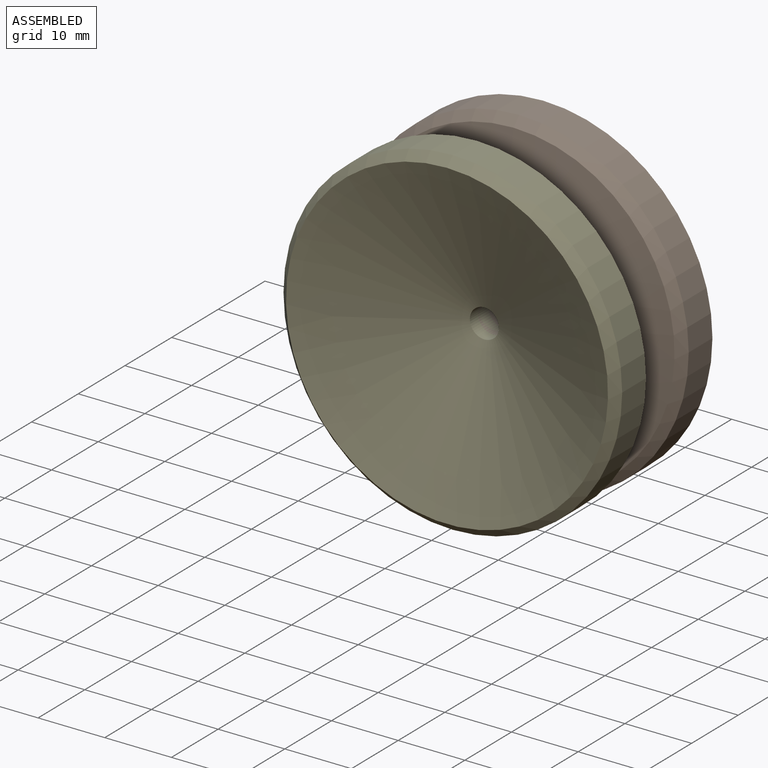
[diagram: assembled view]
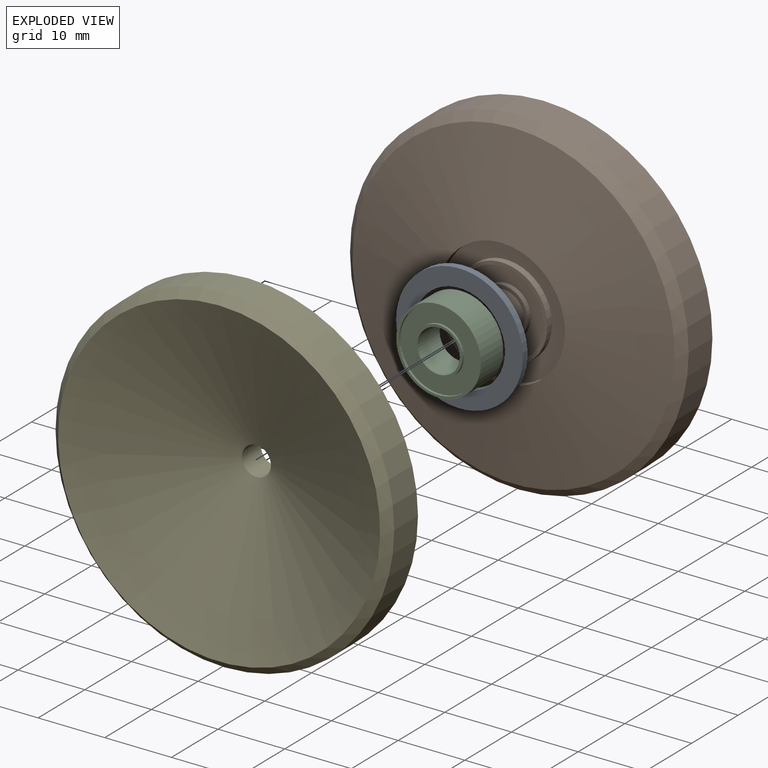
[diagram: exploded view]
GUIDED TOUR — MATED ASSEMBLY (Onshape document 0cececd1d581c5ba47dd9a4f, AutoMate assembly 0cececd1d581c5ba47dd9a4f_2307bee26cb785bb0d0b0812_d44ac8d073755cfcf567f2fb_default)

This assembly has 5 components, labeled P0..P4 below (a component is one placed occurrence of a part; the same part can appear more than once), held together by 4 mates. A mate is a constraint between two components; its type names the relative motion it leaves free:
  FASTENED — locks the two components together rigidly (no relative motion).
Axis/direction vectors are unit vectors and 'through' points are millimeter coordinates, both in the assembly's world frame.

MATES
  1. FASTENED "Fastened 2": P3 <-> P4, direction (0.000, -1.000, 0.000) through (-38.23, -20.08, 12.99) mm
  2. FASTENED "Fastened 4": P2 <-> P1, direction (0.000, 1.000, 0.000) through (-38.23, -14.97, 12.99) mm
  3. FASTENED "Fastened 3": P2 <-> P4, direction (0.000, -1.000, 0.000) through (-38.23, -19.34, 12.99) mm
  4. FASTENED "Fastened 1": P0 <-> P1, direction (0.000, 1.000, 0.000) through (-38.23, -16.53, 12.99) mm

ASSEMBLY ORDER
  1. P1 — the base component [order heuristic]
  2. P0 [order heuristic]
  3. P2 [order heuristic]
  4. P4 [order heuristic]
  5. P3 [order heuristic]
Order-tag legend:
  [order heuristic] — this assembly is geometrically interlocked (no collision-free removal order exists), so components are listed in mate-graph order; insertion feasibility is not verified.

Of the 5 components, 3 carry the full construction recipe — the FeatureScript program that regenerates the part's solid from scratch; the rest are supplied as boundary geometry only.
Each toured component is shown spotlighted twice — in the assembled view, then in the exploded view, where a leader line traces a displaced component back to its assembled socket (saturated green if recipe-attached, orange if geometry-only; every other component desaturated gray) — followed by its recipe or geometry summary and the mates that hold it.
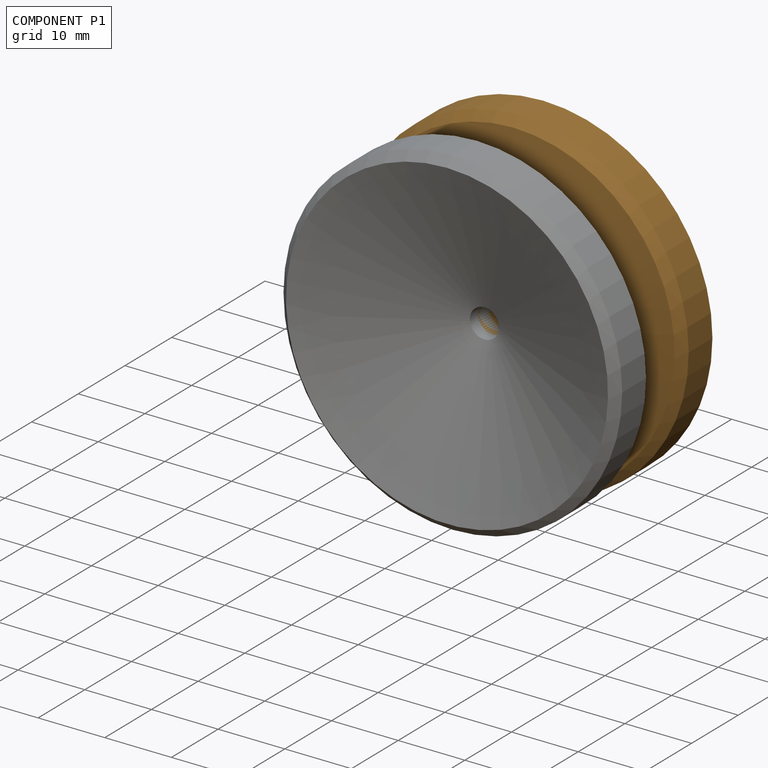
[diagram: component P1 — assembled]
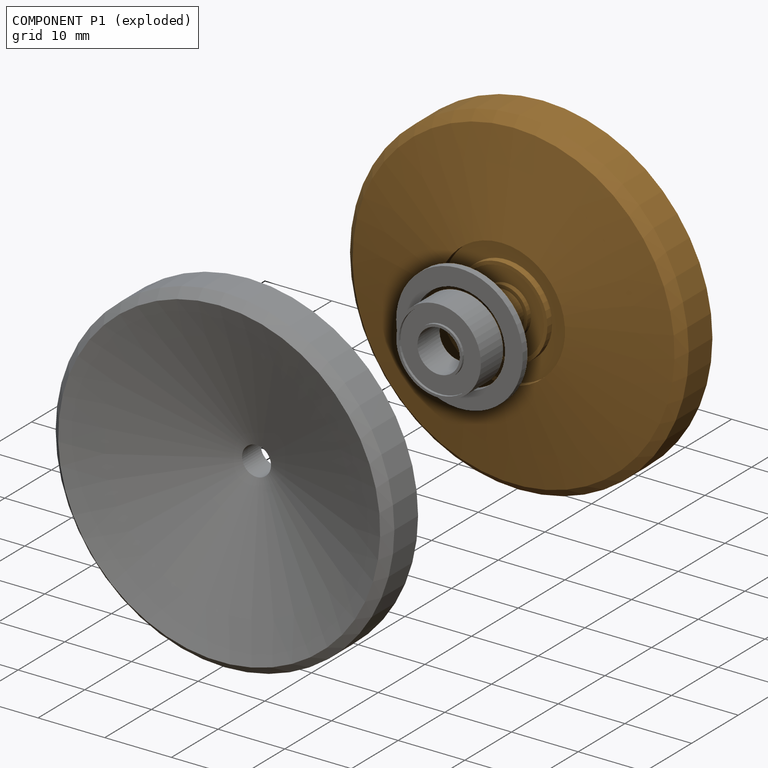
[diagram: component P1 — exploded]
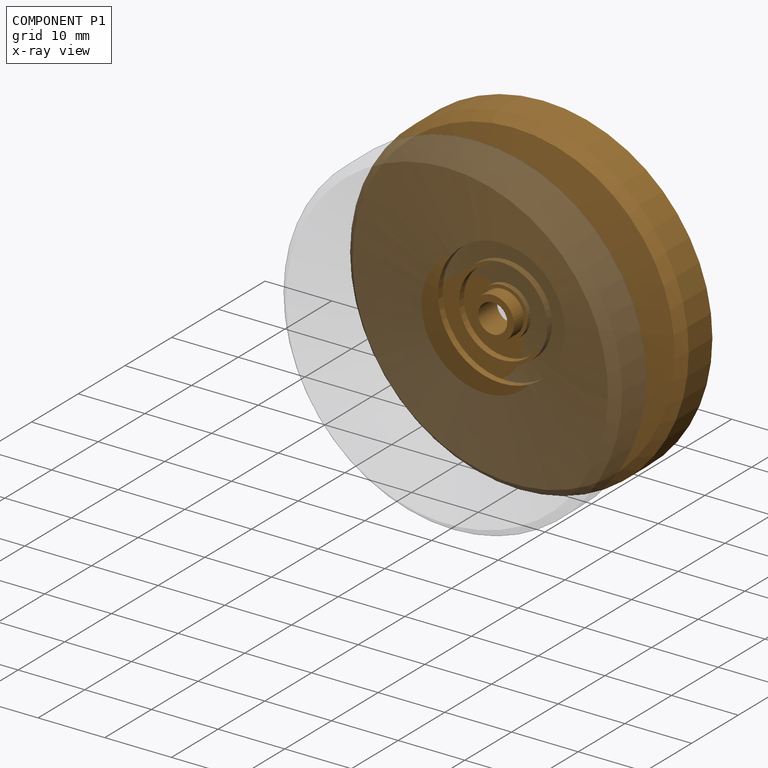
[diagram: component P1 — x-ray view]
COMPONENT P1 — geometry summary (no construction recipe available for this part):
  bounding box: 50.8 x 50.8 x 12.0 mm
  B-rep topology: 1 solid, 16 faces, 56 edges
  volume: 11971 mm^3 (39% of its bounding box)
  symmetry: revolution-symmetric about the y axis through its bounding-box center; mirror-symmetric across its x mid-plane, z mid-plane
Held by: FASTENED mate "Fastened 4" to P2; FASTENED mate "Fastened 1" to P0.
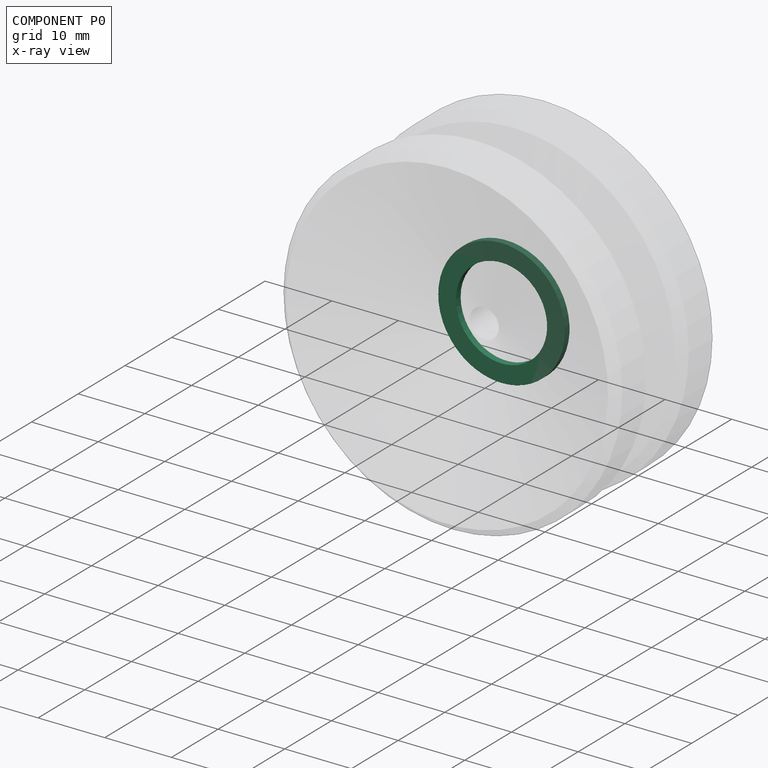
[diagram: component P0 — x-ray view]
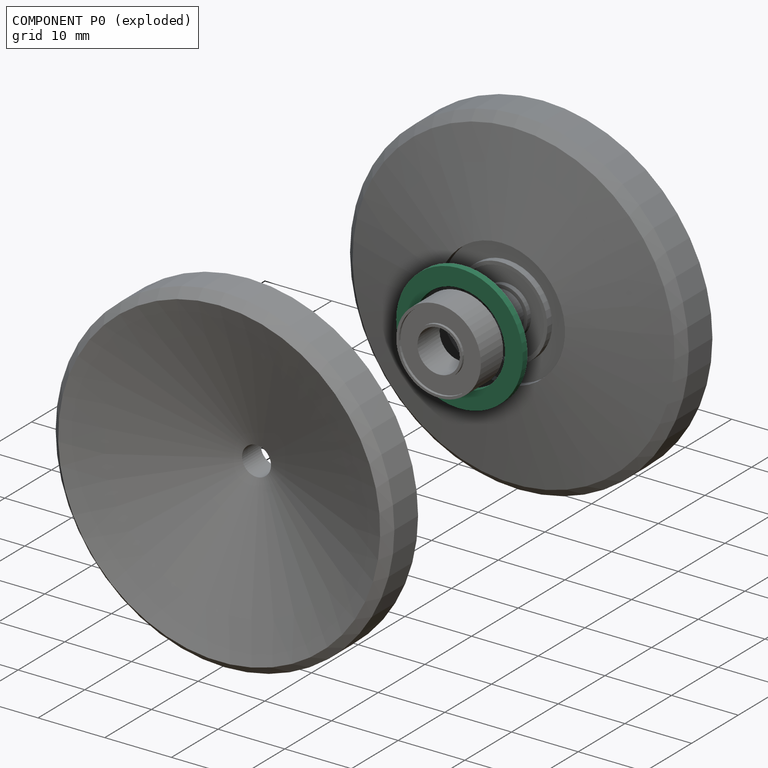
[diagram: component P0 — exploded]
COMPONENT P0 — recipe-attached (CADFS 00798562, mesh-verified: the recipe's output STEP matches this component's geometry to below the mesh-comparison resolution (tessellation chordal tolerance ~0.0403 mm)).
Held by: FASTENED mate "Fastened 1" to P1.
Construction recipe (FeatureScript — the CAD program that rebuilds this solid; sketch coordinates are in the units given by the * unit suffixes, e.g. mm):

FeatureScript 1511;
import(path : "onshape/std/geometry.fs", version : "1511.0");
import(path : "onshape/std/common.fs", version : "1511.0");
const mm = millimeter;
const VERTEX = EntityType.VERTEX;
const EDGE = EntityType.EDGE;
const FACE = EntityType.FACE;
const BODY = EntityType.BODY;
function v(x, y){return vector(x, y);}
function OD(order){return orderDisambiguation(order);}
function OSD(set){return originalSetDisambiguation(set);}
function TD(topology){return topologyDisambiguation(topology);}
function TDD(query){return trueDependencyDisambiguation(query);}
function sQuery(a, b, c) {return sketchEntityQuery(a, b, c);}

annotation { "Feature Type Name" : "Feature", "Feature Type Description" : "" }
export const myFeature = defineFeature(function(context is Context, id is Id, definition is map)
    precondition{}
    {
        {
            var Q0;
            Q0=qCreatedBy(makeId("Right.planeOp"),FACE);
            var sketch = newSketch(context, id + "F0", { "sketchPlane" : qUnion([Q0])});
            skCircle(sketch, "E0", {"center": v(0, 0) * mm, "radius": 9.5 * mm});
            skLineSegment(sketch, "E1", {"start": v(0, 9.5) * mm, "end": v(0, 6.83) * mm});
            skLineSegment(sketch, "E2", {"start": v(0, -9.5) * mm, "end": v(0, -6.83) * mm});
            skLineSegment(sketch, "E3", {"start": v(-9.5, 0) * mm, "end": v(-6.83, 0) * mm});
            skLineSegment(sketch, "E4", {"start": v(9.5, 0) * mm, "end": v(6.83, 0) * mm});
            skCircle(sketch, "E5", {"center": v(0, 0) * mm, "radius": 6.83 * mm});
            skSolve(sketch);
        }
        {
            var Q0;
            {var subQ0=sQuery(id+"F0.wireOp",EDGE,"E1");Q0=makeQuery(id+"F0.imprint","IMPRINT",FACE,{"disambiguationData":[TD([[makeQuery(id+"F0.imprint","IMPRINT",EDGE,{"derivedFrom":subQ0}),-1.0]])]});}
            var Q1;
            {var subQ0=sQuery(id+"F0.wireOp",EDGE,"E1");Q1=makeQuery(id+"F0.imprint","IMPRINT",FACE,{"disambiguationData":[TD([[makeQuery(id+"F0.imprint","IMPRINT",EDGE,{"derivedFrom":subQ0}),1.0]])]});}
            var Q2;
            {var subQ0=sQuery(id+"F0.wireOp",EDGE,"E2");Q2=makeQuery(id+"F0.imprint","IMPRINT",FACE,{"disambiguationData":[TD([[makeQuery(id+"F0.imprint","IMPRINT",EDGE,{"derivedFrom":subQ0}),-1.0]])]});}
            var Q3;
            {var subQ0=sQuery(id+"F0.wireOp",EDGE,"E2");Q3=makeQuery(id+"F0.imprint","IMPRINT",FACE,{"disambiguationData":[TD([[makeQuery(id+"F0.imprint","IMPRINT",EDGE,{"derivedFrom":subQ0}),1.0]])]});}
            extrude(context, id + "F1", {"entities" : qUnion([Q0, Q1, Q2, Q3]), "depth" : 1.02 * mm});
        }
    });
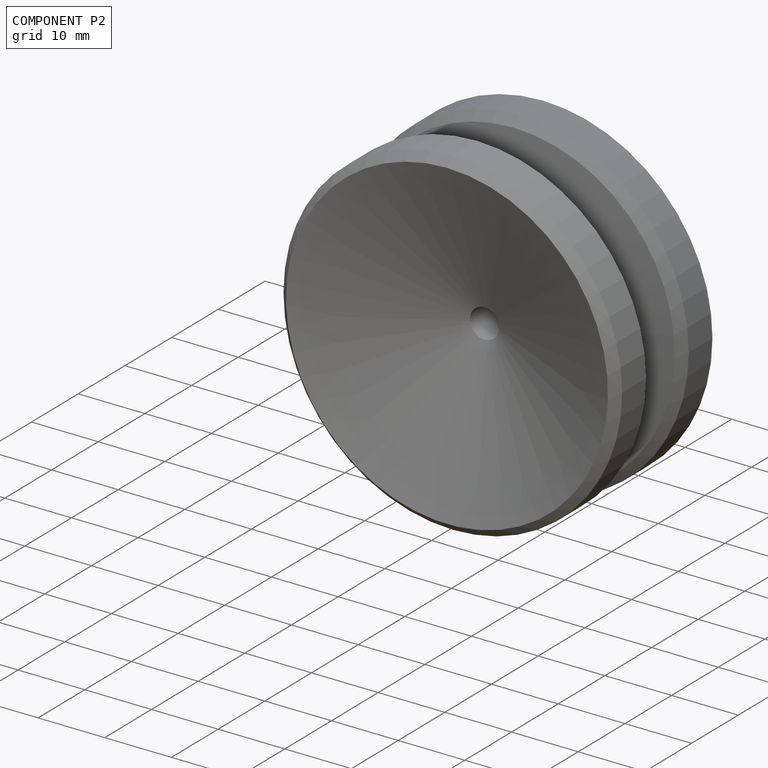
[diagram: component P2 — assembled]
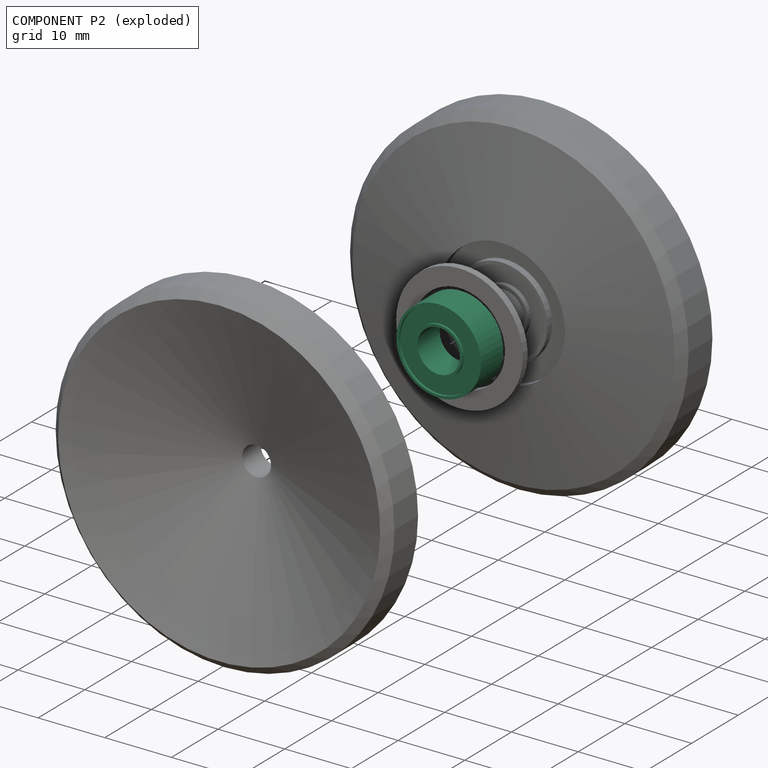
[diagram: component P2 — exploded]
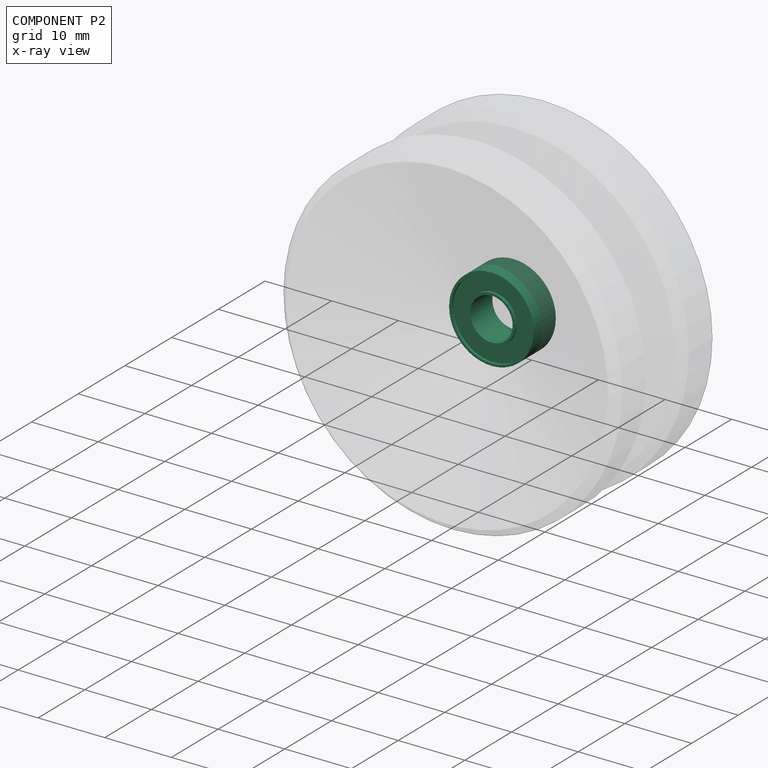
[diagram: component P2 — x-ray view]
COMPONENT P2 — recipe-attached (CADFS 00783110, mesh-verified: the recipe's output STEP matches this component's geometry to below the mesh-comparison resolution (tessellation chordal tolerance ~0.0279 mm)).
Held by: FASTENED mate "Fastened 4" to P1; FASTENED mate "Fastened 3" to P4.
Construction recipe (FeatureScript — the CAD program that rebuilds this solid; sketch coordinates are in the units given by the * unit suffixes, e.g. mm):

FeatureScript 1540;
import(path : "onshape/std/geometry.fs", version : "1540.0");
import(path : "onshape/std/common.fs", version : "1540.0");
const mm = millimeter;
const VERTEX = EntityType.VERTEX;
const EDGE = EntityType.EDGE;
const FACE = EntityType.FACE;
const BODY = EntityType.BODY;
function v(x, y){return vector(x, y);}
function OD(order){return orderDisambiguation(order);}
function OSD(set){return originalSetDisambiguation(set);}
function TD(topology){return topologyDisambiguation(topology);}
function TDD(query){return trueDependencyDisambiguation(query);}
function sQuery(a, b, c) {return sketchEntityQuery(a, b, c);}

annotation { "Feature Type Name" : "Feature", "Feature Type Description" : "" }
export const myFeature = defineFeature(function(context is Context, id is Id, definition is map)
    precondition{}
    {
        {
            var Q0;
            Q0=qCreatedBy(makeId("Right.planeOp"),FACE);
            var sketch = newSketch(context, id + "F0", { "sketchPlane" : qUnion([Q0])});
            skCircle(sketch, "E0", {"center": v(0, 0) * mm, "radius": 6.35 * mm});
            skSolve(sketch);
        }
        {
            var Q0;
            Q0=makeQuery(id+"F0.imprint","IMPRINT",FACE,{"disambiguationData":[TD([[makeQuery(id+"F0.imprint","IMPRINT",EDGE,{"derivedFrom":sQuery(id+"F0.wireOp",EDGE,"E0")}),1.0]])]});
            extrude(context, id + "F1", {"entities" : qUnion([Q0]), "depth" : 4.75 * mm});
        }
        {
            var Q0;
            Q0=makeQuery(id+"F1.opExtrude","CAP_FACE",FACE,{"disambiguationData":[OSD([sQuery(id+"F0.wireOp",EDGE,"E0")])],"isStart":false});
            var sketch = newSketch(context, id + "F2", { "sketchPlane" : qUnion([Q0])});
            skCircle(sketch, "E1", {"center": v(0, 0) * mm, "radius": 3.18 * mm});
            skSolve(sketch);
        }
        {
            var Q0;
            Q0=makeQuery(id+"F2.imprint","IMPRINT",FACE,{"disambiguationData":[TD([[makeQuery(id+"F2.imprint","IMPRINT",EDGE,{"derivedFrom":sQuery(id+"F2.wireOp",EDGE,"E1")}),1.0]])]});
            extrude(context, id + "F3", {"entities" : qUnion([Q0]), "operationType" : NewBodyOperationType.REMOVE, "oppositeDirection" : true, "depth" : 25.4 * mm});
        }
        {
            var Q0;
            Q0=makeQuery(id+"F1.opExtrude","CAP_FACE",FACE,{"disambiguationData":[OSD([sQuery(id+"F0.wireOp",EDGE,"E0")])],"isStart":false});
            var sketch = newSketch(context, id + "F4", { "sketchPlane" : qUnion([Q0])});
            skLineSegment(sketch, "E2", {"start": v(0, 3.18) * mm, "end": v(0, 3.56) * mm});
            skLineSegment(sketch, "E3", {"start": v(0, 6.35) * mm, "end": v(0, 5.97) * mm});
            skLineSegment(sketch, "E4", {"start": v(0, -3.18) * mm, "end": v(0, -3.56) * mm});
            skLineSegment(sketch, "E5", {"start": v(0, -6.35) * mm, "end": v(0, -5.97) * mm});
            skCircle(sketch, "E6", {"center": v(0, 0) * mm, "radius": 3.56 * mm});
            skCircle(sketch, "E7", {"center": v(0, 0) * mm, "radius": 5.97 * mm});
            skSolve(sketch);
        }
        {
            var Q0;
            {var subQ0=sQuery(id+"F4.wireOp",EDGE,"E6");var subQ1=makeQuery(id+"F4.imprint","INTERSECT",VERTEX,{"derivedFrom":[sQuery(id+"F4.wireOp",EDGE,"E2"),subQ0]});Q0=makeQuery(id+"F4.imprint","IMPRINT",FACE,{"disambiguationData":[TD([[makeQuery(id+"F4.imprint","IMPRINT",EDGE,{"disambiguationData":[TD([[subQ1,-1.0]])],"derivedFrom":subQ0}),-1.0]])]});}
            extrude(context, id + "F5", {"entities" : qUnion([Q0]), "operationType" : NewBodyOperationType.REMOVE, "oppositeDirection" : true, "depth" : 0.38 * mm});
        }
        {
            var Q0;
            Q0=makeQuery(id+"F1.opExtrude","CAP_FACE",FACE,{"disambiguationData":[OSD([sQuery(id+"F0.wireOp",EDGE,"E0")])],"isStart":true});
            var sketch = newSketch(context, id + "F6", { "sketchPlane" : qUnion([Q0])});
            skLineSegment(sketch, "E8", {"start": v(0, 3.18) * mm, "end": v(0, 3.56) * mm});
            skLineSegment(sketch, "E9", {"start": v(0, 6.35) * mm, "end": v(0, 5.97) * mm});
            skLineSegment(sketch, "E10", {"start": v(0, -3.18) * mm, "end": v(0, -3.56) * mm});
            skLineSegment(sketch, "E11", {"start": v(0, -6.35) * mm, "end": v(0, -5.97) * mm});
            skCircle(sketch, "E12", {"center": v(0, 0) * mm, "radius": 3.56 * mm});
            skCircle(sketch, "E13", {"center": v(0, 0) * mm, "radius": 5.97 * mm});
            skSolve(sketch);
        }
        {
            var Q0;
            {var subQ0=sQuery(id+"F6.wireOp",EDGE,"E12");var subQ1=makeQuery(id+"F6.imprint","INTERSECT",VERTEX,{"derivedFrom":[sQuery(id+"F6.wireOp",EDGE,"E8"),subQ0]});Q0=makeQuery(id+"F6.imprint","IMPRINT",FACE,{"disambiguationData":[TD([[makeQuery(id+"F6.imprint","IMPRINT",EDGE,{"disambiguationData":[TD([[subQ1,-1.0]])],"derivedFrom":subQ0}),-1.0]])]});}
            extrude(context, id + "F7", {"entities" : qUnion([Q0]), "operationType" : NewBodyOperationType.REMOVE, "oppositeDirection" : true, "depth" : 0.38 * mm});
        }
    });
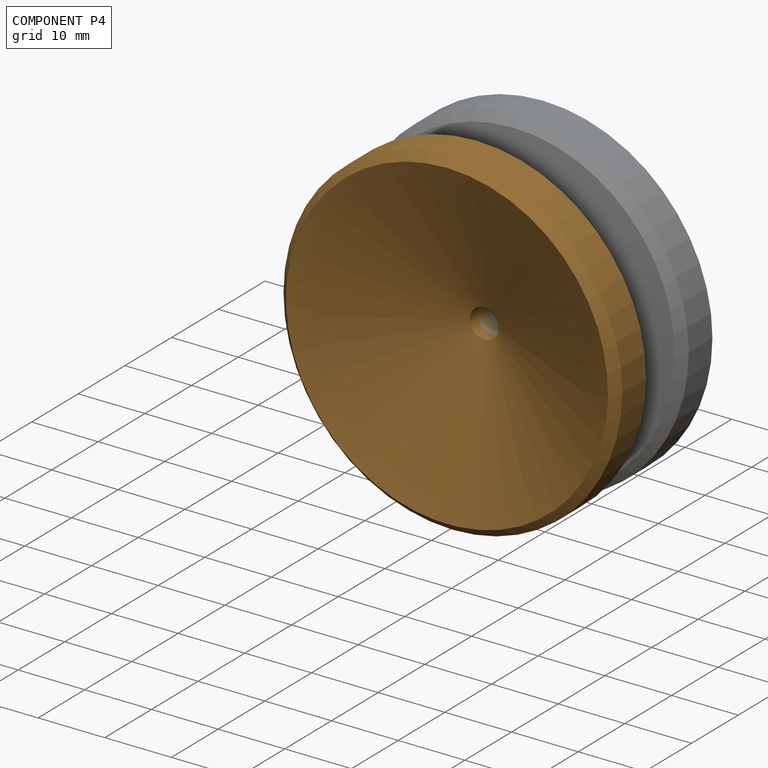
[diagram: component P4 — assembled]
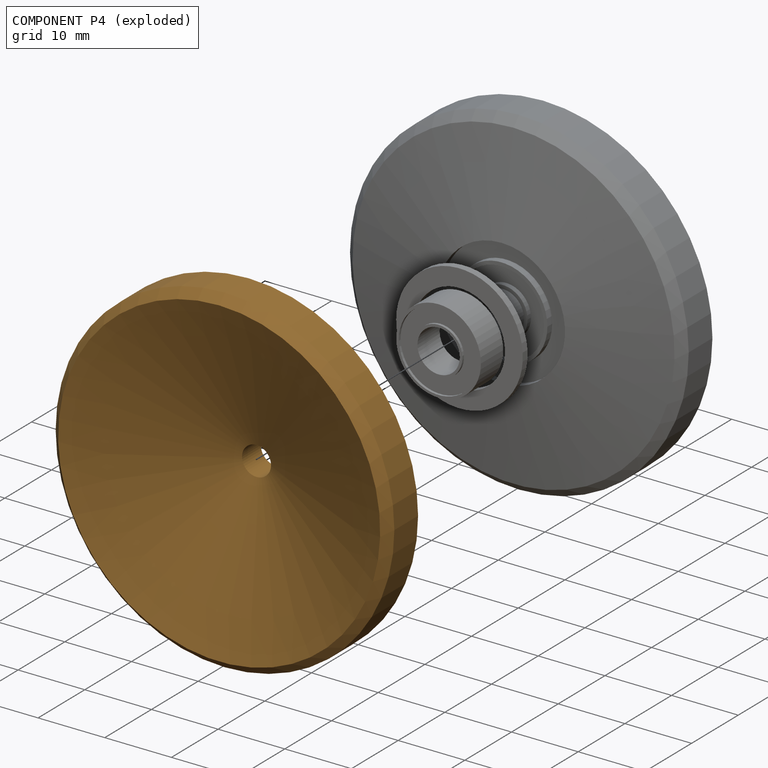
[diagram: component P4 — exploded]
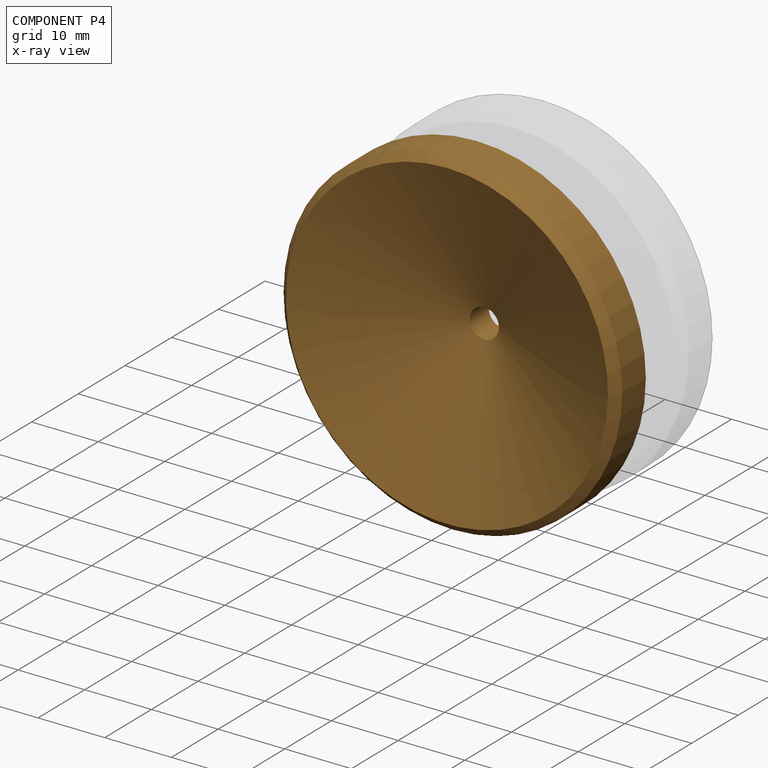
[diagram: component P4 — x-ray view]
COMPONENT P4 — geometry summary (no construction recipe available for this part):
  bounding box: 50.8 x 50.8 x 12.0 mm
  B-rep topology: 1 solid, 16 faces, 56 edges
  volume: 11971 mm^3 (39% of its bounding box)
  symmetry: revolution-symmetric about the y axis through its bounding-box center; mirror-symmetric across its x mid-plane, z mid-plane
Held by: FASTENED mate "Fastened 2" to P3; FASTENED mate "Fastened 3" to P2.
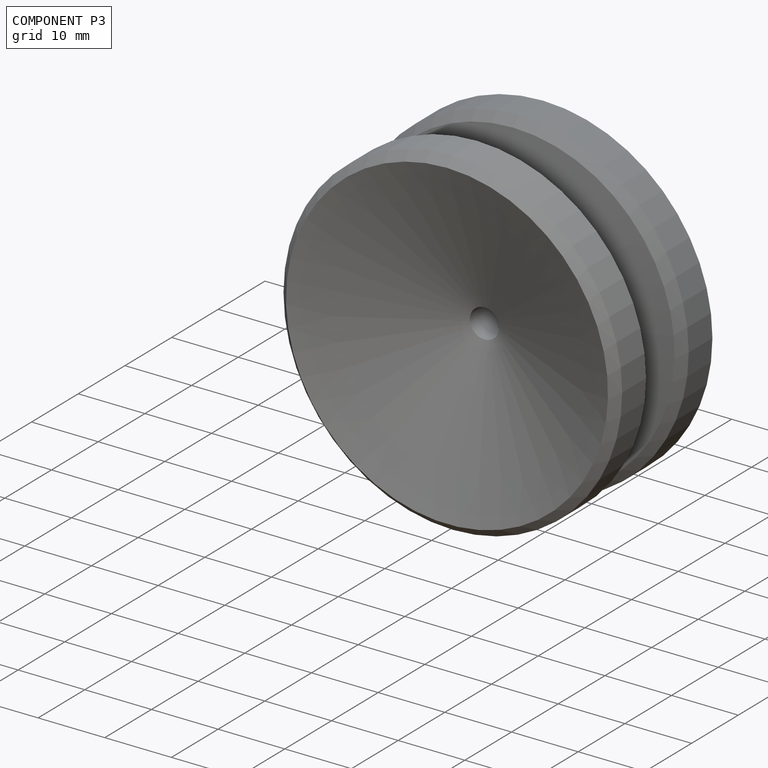
[diagram: component P3 — assembled]
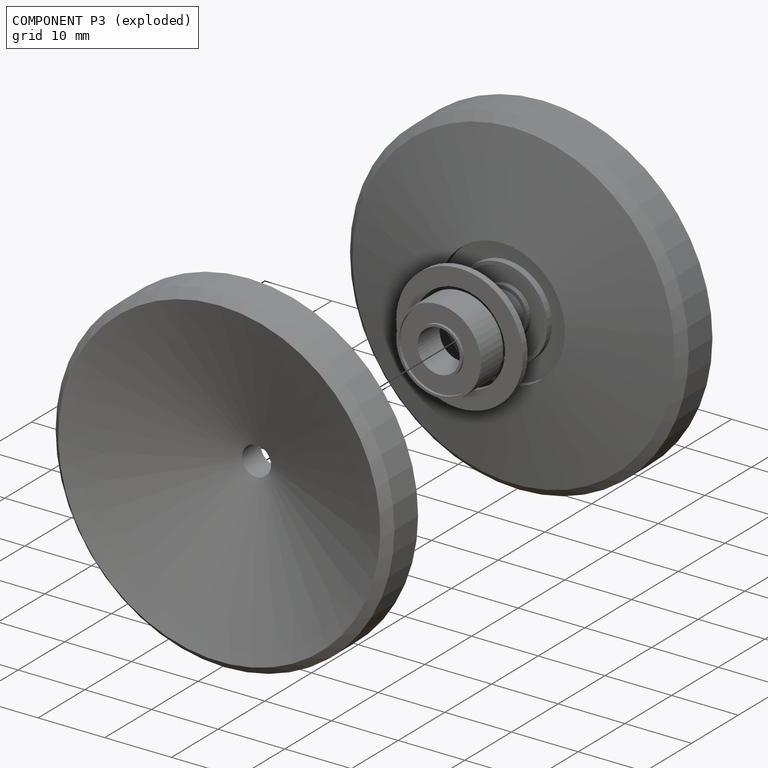
[diagram: component P3 — exploded]
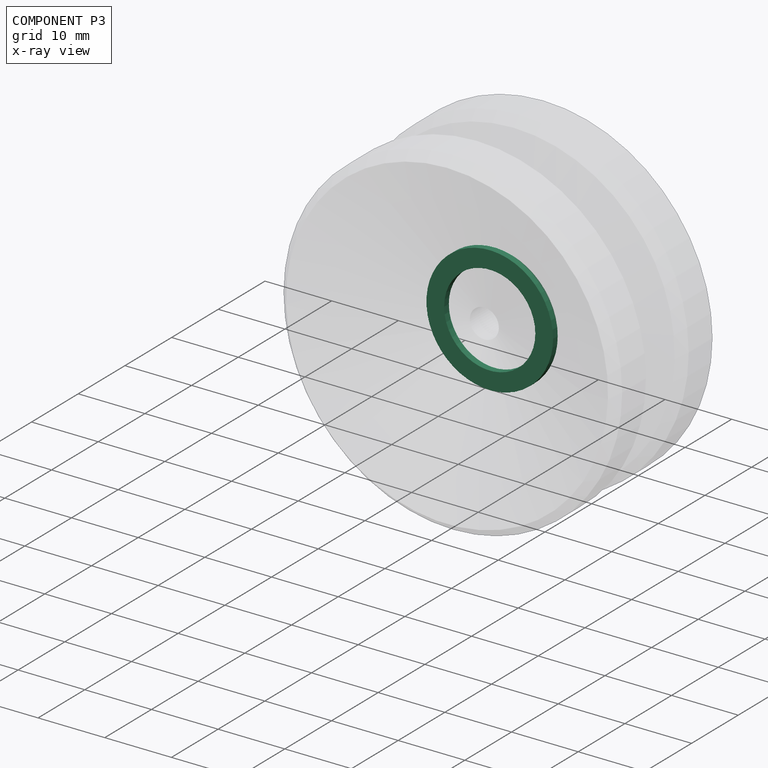
[diagram: component P3 — x-ray view]
COMPONENT P3 — same part as P0 (CADFS 00798562); its construction recipe is shown at P0.
Held by: FASTENED mate "Fastened 2" to P4.
PROVENANCE & LICENSES
Assembly (occurrences, transforms, mates, per-part STEP geometry): AutoMate dataset, Zenodo record 7776208, CC0.
Construction recipes: CADFS (HuggingFace VladPyatov/CADFS, CC-BY-4.0, layered over the ABC dataset), FeatureScript reconstruction programs keyed by ABC model id.
Join: ABC meta listings map ABC model id -> Onshape documentId; within a shared document, parts are matched by geometric signature (bounding-box dims + volume at 0.1% relative tolerance, exact B-rep face/solid counts).
Verification: 3 of this assembly's 5 components carry a recipe attachment, and every attachment is mesh-verified: the CADFS STEP and the AutoMate member STEP were compared as meshes in their shared local frame (symmetric sampled-point-to-mesh distance); worst across the 3 attachments: below the mesh-comparison resolution (tessellation chordal tolerance ~0.0403 mm) on a 27 mm part.
Renders: orthographic iso camera (az 35 / el 25); the floor grid conveys scale (grid pitch printed in each image; no ruler). In the exploded view each component is displaced by its stored offset vector: the offsets alone carry the explosion direction (mate normal/axis signs are not orientation cues and do not encode it), and separation distances are assigned per mate-chain, not proportionally to assembly-order depth.
